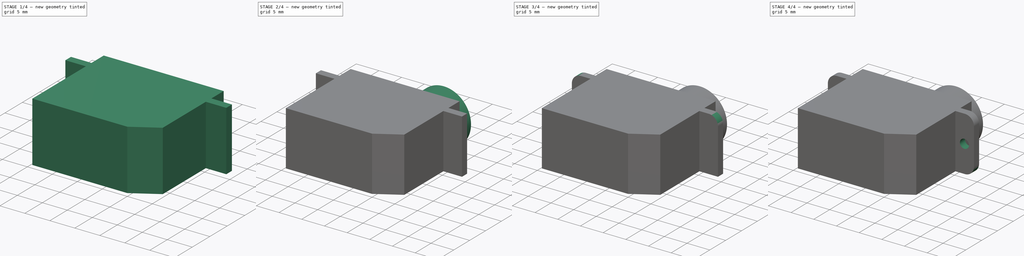
[diagram: build sequence overview — one tinted view per stage of 4, left to right]
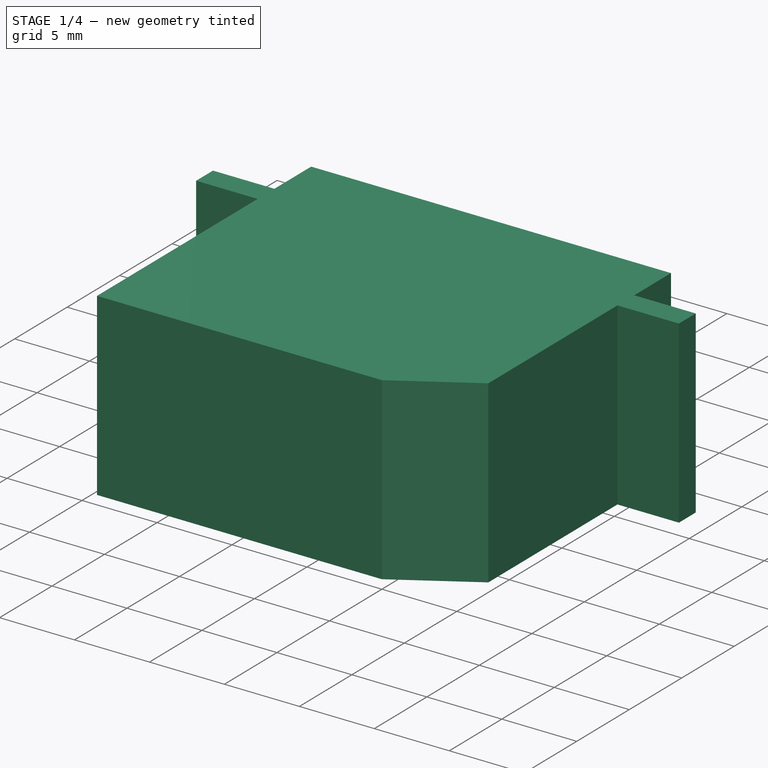
[diagram: stage 1 of 4 — iso view after this stage's code; geometry added in this stage tinted green]
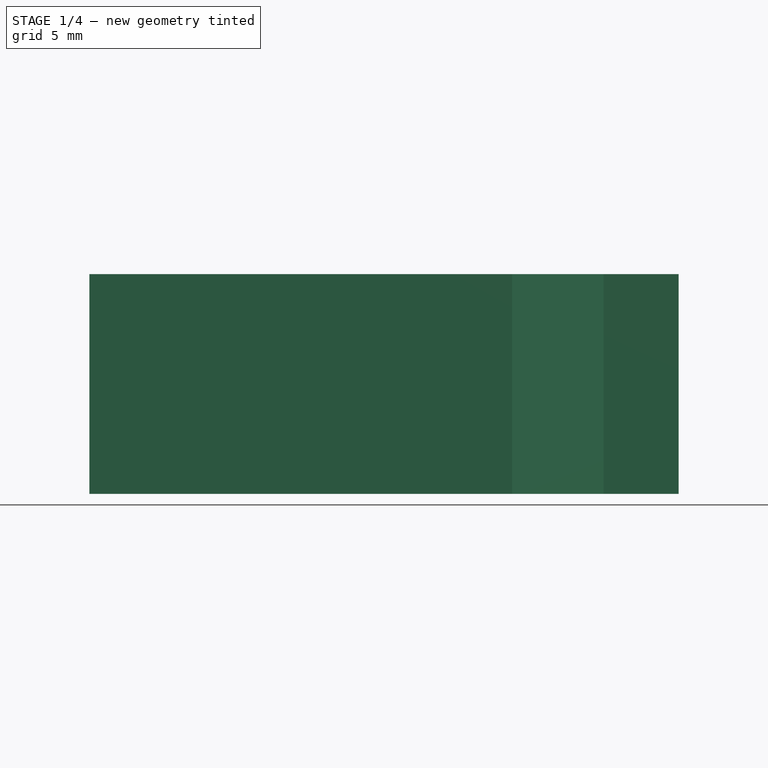
[diagram: stage 1 of 4 — front view after this stage's code; geometry added in this stage tinted green]
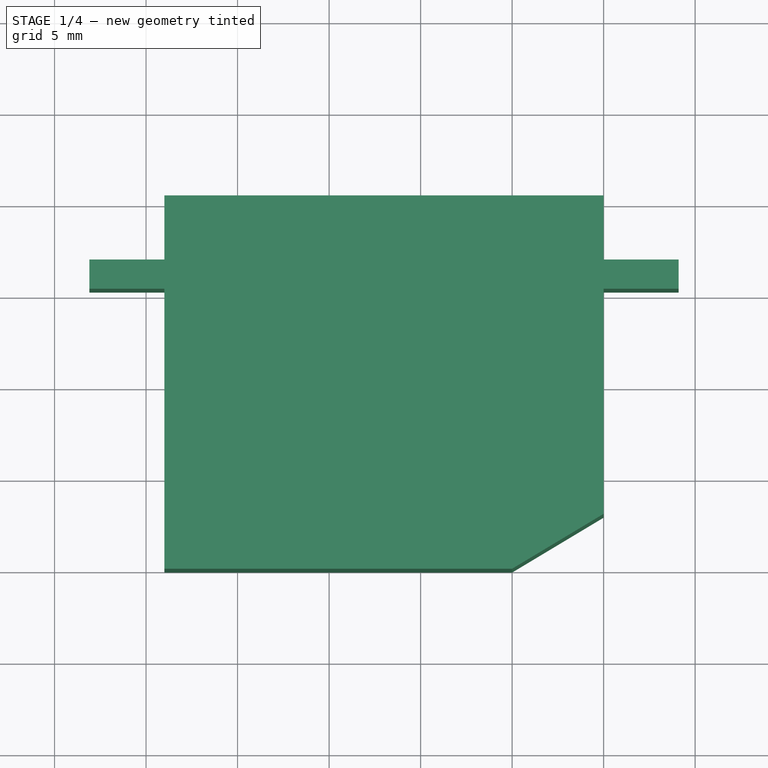
[diagram: stage 1 of 4 — top view after this stage's code; geometry added in this stage tinted green]
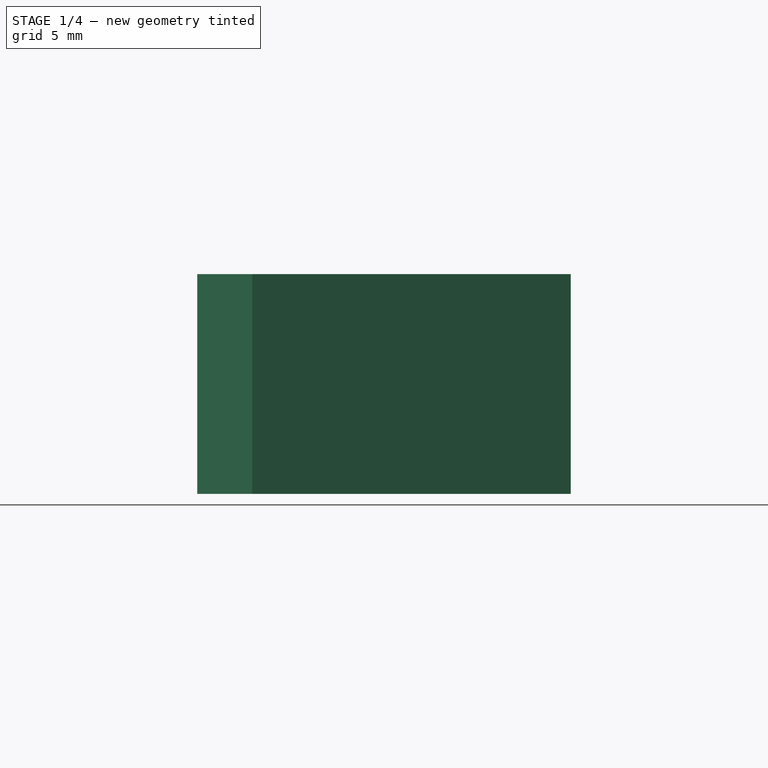
[diagram: stage 1 of 4 — right view after this stage's code; geometry added in this stage tinted green]
FCSTD DOCUMENT  (FreeCAD 0.16R4928 (Git))
Label: EmaxES08MAII
License: All rights reserved
LicenseURL: http://en.wikipedia.org/wiki/All_rights_reserved
objects: Sketcher::SketchObject×7, PartDesign::Pad×5, PartDesign::Fillet×4, PartDesign::LinearPattern×1, PartDesign::Pocket×1
note: 24 computed .brp shape members not serialized (recipe doc carries the construction recipe); baked Part::Feature solids carry a one-line shape summary decoded from their .brp

FEATURE [Sketcher::SketchObject] Sketch
  sketch-geometry (5):
    g0: LineSegment StartX=-19 StartY=20.4 StartZ=0 EndX=5 EndY=20.4 EndZ=0
    g1: LineSegment StartX=5 StartY=20.4 StartZ=0 EndX=5 EndY=3 EndZ=0
    g2: LineSegment StartX=0 StartY=0 StartZ=0 EndX=-19 EndY=0 EndZ=0
    g3: LineSegment StartX=-19 StartY=0 StartZ=0 EndX=-19 EndY=20.4 EndZ=0
    g4: LineSegment StartX=0 StartY=0 StartZ=0 EndX=5 EndY=3 EndZ=0
  constraints (15):
    c: Coincident(g0,g1)
    c: Coincident(g2,g3)
    c: Coincident(g3,g0)
    c: Horizontal(g0)
    c: Horizontal(g2)
    c: Vertical(g1)
    c: Vertical(g3)
    c: Coincident(g2,g4)
    c: Coincident(g1,g4)
    c: DistanceY(g1) = -17.4
    c: DistanceX(g0) = 24
    c: DistanceY(g3) = 20.4
    c: DistanceX(g2) = -19
    c: PointOnObject(g-1,g2)
    c: Coincident(g2,g-1)
FEATURE [PartDesign::Pad] Pad
  Length = 12
  Length2 = 100
  Sketch = -> Sketch
  Type = 0
FEATURE [Sketcher::SketchObject] Sketch001
  ExternalGeometry = -> [Pad]
  Placement = pos=(5,0,0) rot=(0.57735,0.57735,0.57735;2.0944rad)
  Support = -> Pad [Face4]
  sketch-geometry (4):
    g0: LineSegment StartX=15.3 StartY=12 StartZ=0 EndX=16.9 EndY=12 EndZ=0
    g1: LineSegment StartX=16.9 StartY=12 StartZ=0 EndX=16.9 EndY=0 EndZ=0
    g2: LineSegment StartX=16.9 StartY=0 StartZ=0 EndX=15.3 EndY=0 EndZ=0
    g3: LineSegment StartX=15.3 StartY=0 StartZ=0 EndX=15.3 EndY=12 EndZ=0
  constraints (12):
    c: Coincident(g0,g1)
    c: Coincident(g1,g2)
    c: Coincident(g2,g3)
    c: Coincident(g3,g0)
    c: Horizontal(g0)
    c: Horizontal(g2)
    c: Vertical(g1)
    c: Vertical(g3)
    c: PointOnObject(g0,g-3)
    c: PointOnObject(g1,g-4)
    c: DistanceX(g1,g2) = -1.6
    c: DistanceX(g0,g-3) = 3.5
FEATURE [PartDesign::Pad] Pad001
  Length = 4.1
  Length2 = 100
  Sketch = -> Sketch001
  Type = 0
FEATURE [PartDesign::LinearPattern] LinearPattern
  Direction = -> Pad001 [Edge4]
  Length = 28.1
  Occurrences = 2
  Originals = -> [Pad001]
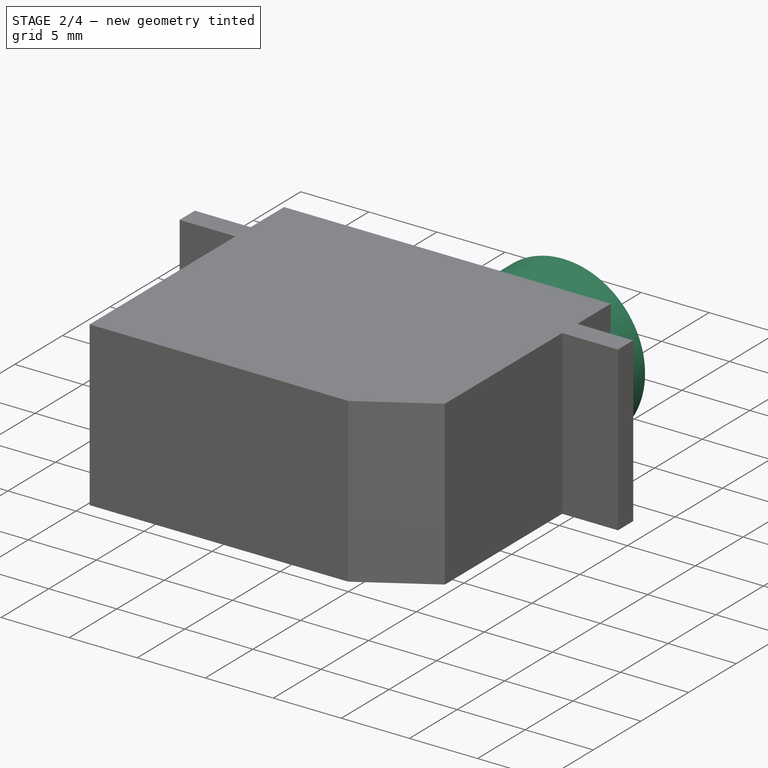
[diagram: stage 2 of 4 — iso view after this stage's code; geometry added in this stage tinted green]
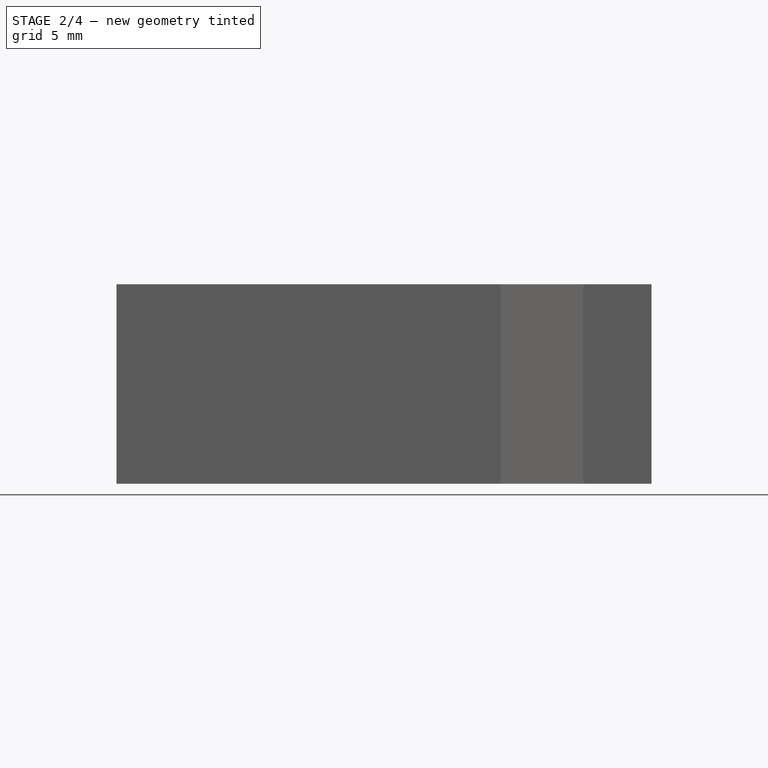
[diagram: stage 2 of 4 — front view after this stage's code; geometry added in this stage tinted green]
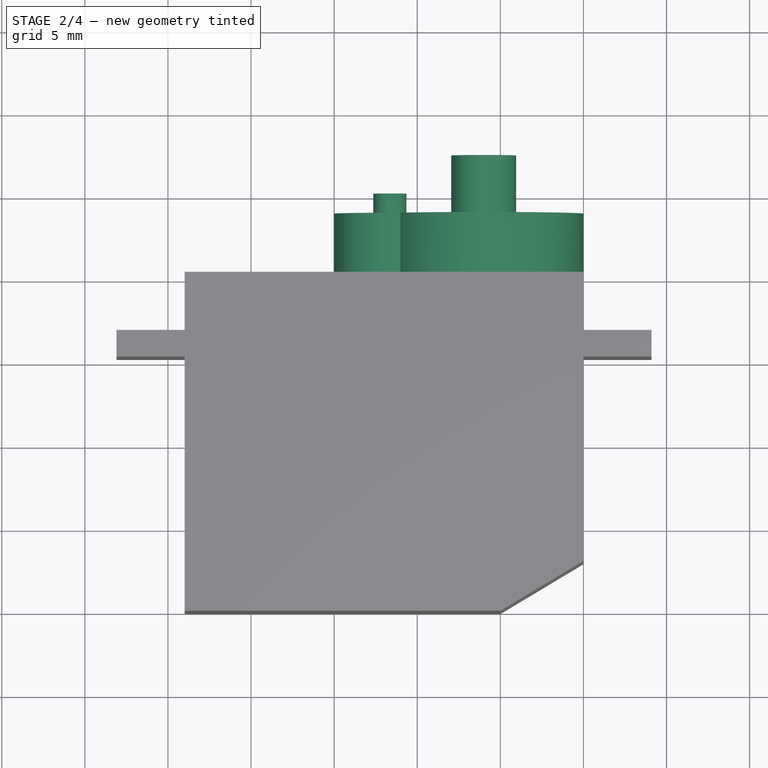
[diagram: stage 2 of 4 — top view after this stage's code; geometry added in this stage tinted green]
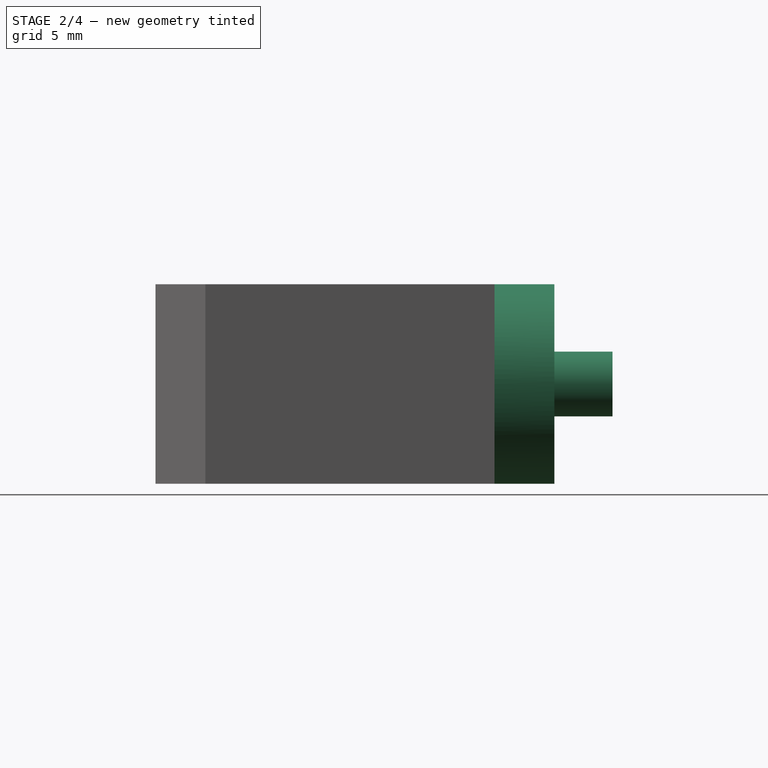
[diagram: stage 2 of 4 — right view after this stage's code; geometry added in this stage tinted green]
FEATURE [Sketcher::SketchObject] Sketch002
  Placement = pos=(0,20.4,0) rot=(0,0.707107,0.707107;3.14159rad)
  Support = -> LinearPattern [Face12]
FEATURE [Sketcher::SketchObject] Sketch003
  ExternalGeometry = -> [LinearPattern]
  Placement = pos=(0,20.4,0) rot=(0,0.707107,0.707107;3.14159rad)
  Support = -> LinearPattern [Face12]
  sketch-geometry (5):
    g0: ArcOfCircle CenterX=1 CenterY=6 CenterZ=0 NormalX=0 NormalY=0 NormalZ=1 Radius=6 StartAngle=0.580327 EndAngle=5.70286
    g1: LineSegment [constr] StartX=1 StartY=6 StartZ=0 EndX=-5 EndY=6 EndZ=0
    g2: LineSegment [constr] StartX=1 StartY=6 StartZ=0 EndX=19 EndY=6 EndZ=0
    g3: GeomPoint [constr] X=10 Y=6 Z=0
    g4: ArcOfCircle CenterX=6.65 CenterY=6 CenterZ=0 NormalX=0 NormalY=0 NormalZ=1 Radius=3.35 StartAngle=4.5225 EndAngle=8.04387
  constraints (16):
    c: Tangent(g-3,g0)
    c: Tangent(g0,g-4)
    c: Tangent(g0,g-5)
    c: Coincident(g1,g0)
    c: PointOnObject(g1,g-4)
    c: Horizontal(g1)
    c: PointOnObject(g2,g-6)
    c: Horizontal(g2)
    c: PointOnObject(g3,g2)
    c: DistanceX(g3,g1) = -15
    c: PointOnObject(g3,g4)
    c: PointOnObject(g4,g2)
    c: Radius(g4) = 3.35
    c: Coincident(g0,g4)
    c: Coincident(g0,g4)
    c: Coincident(g2,g0)
FEATURE [PartDesign::Pad] Pad002
  Length = 3.6
  Length2 = 100
  Sketch = -> Sketch003
  Type = 0
FEATURE [Sketcher::SketchObject] Sketch004
  ExternalGeometry = -> [Pad002]
  Placement = pos=(0,24,0) rot=(0,0.707107,0.707107;3.14159rad)
  Support = -> Pad002 [Face24]
  sketch-geometry (1):
    g0: Circle CenterX=1 CenterY=6 CenterZ=0 NormalX=0 NormalY=0 NormalZ=1 Radius=1.95
  constraints (2):
    c: Coincident(g0,g-3)
    c: Radius(g0) = 1.95
FEATURE [PartDesign::Pad] Pad003
  Length = 3.5
  Length2 = 100
  Sketch = -> Sketch004
  Type = 0
FEATURE [Sketcher::SketchObject] Sketch005
  ExternalGeometry = -> [Pad003]
  Placement = pos=(0,24,0) rot=(0,0.707107,0.707107;3.14159rad)
  Support = -> Pad003 [Face24]
  sketch-geometry (1):
    g0: Circle CenterX=6.65 CenterY=6 CenterZ=0 NormalX=0 NormalY=0 NormalZ=1 Radius=1
  constraints (2):
    c: Coincident(g0,g-3)
    c: Radius(g0) = 1
FEATURE [PartDesign::Pad] Pad004
  Length = 1.2
  Length2 = 100
  Sketch = -> Sketch005
  Type = 0
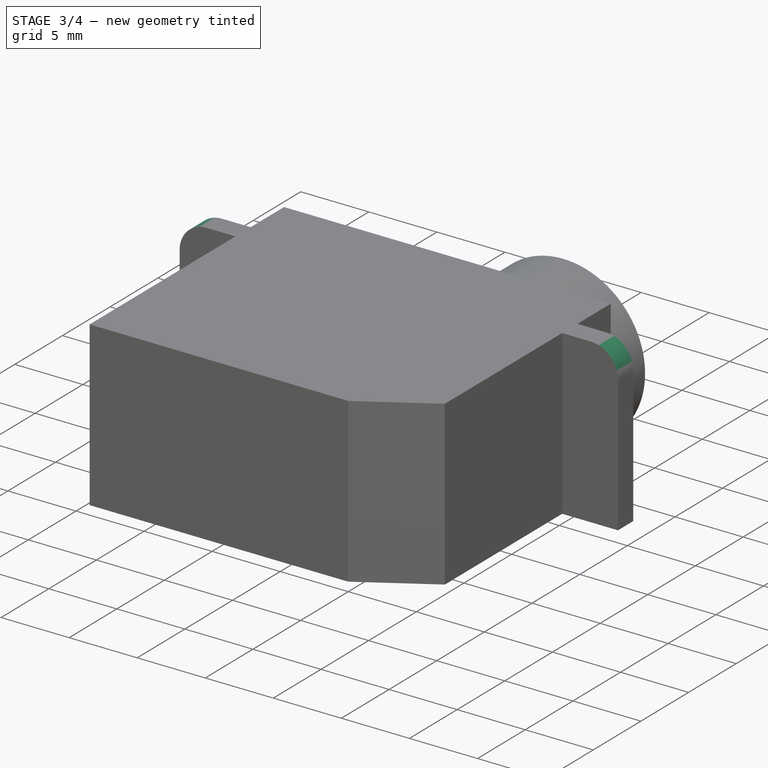
[diagram: stage 3 of 4 — iso view after this stage's code; geometry added in this stage tinted green]
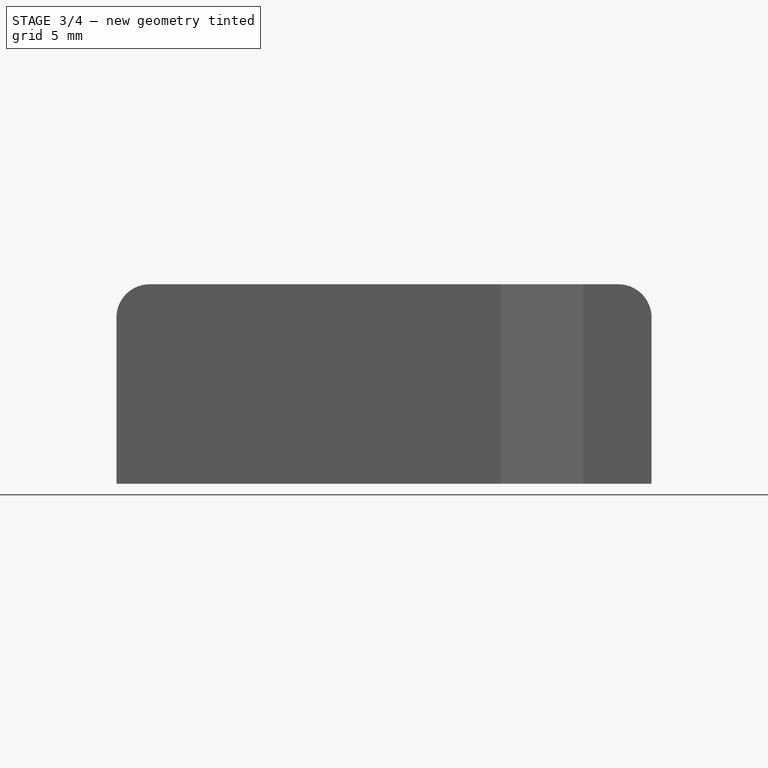
[diagram: stage 3 of 4 — front view after this stage's code; geometry added in this stage tinted green]
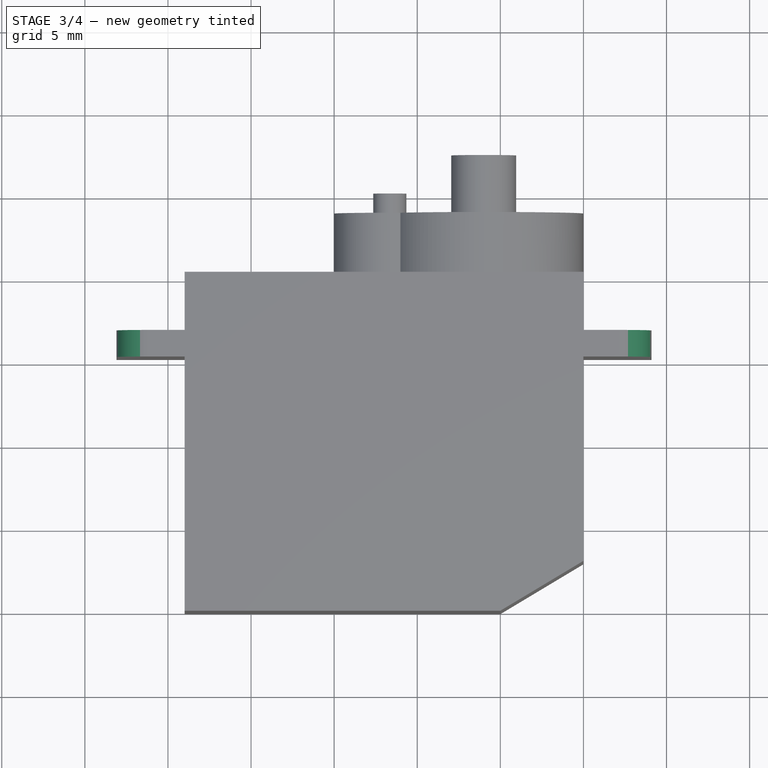
[diagram: stage 3 of 4 — top view after this stage's code; geometry added in this stage tinted green]
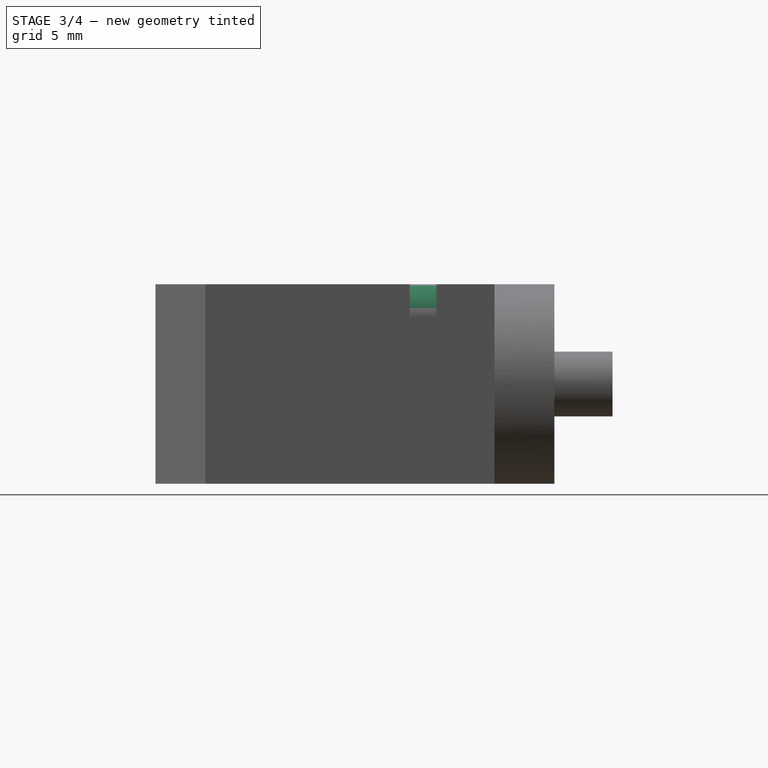
[diagram: stage 3 of 4 — right view after this stage's code; geometry added in this stage tinted green]
FEATURE [PartDesign::Fillet] Fillet
  Base = -> Pad004 [Edge46]
  Radius = 2
FEATURE [PartDesign::Fillet] Fillet001
  Base = -> Fillet [Edge34]
  Radius = 2
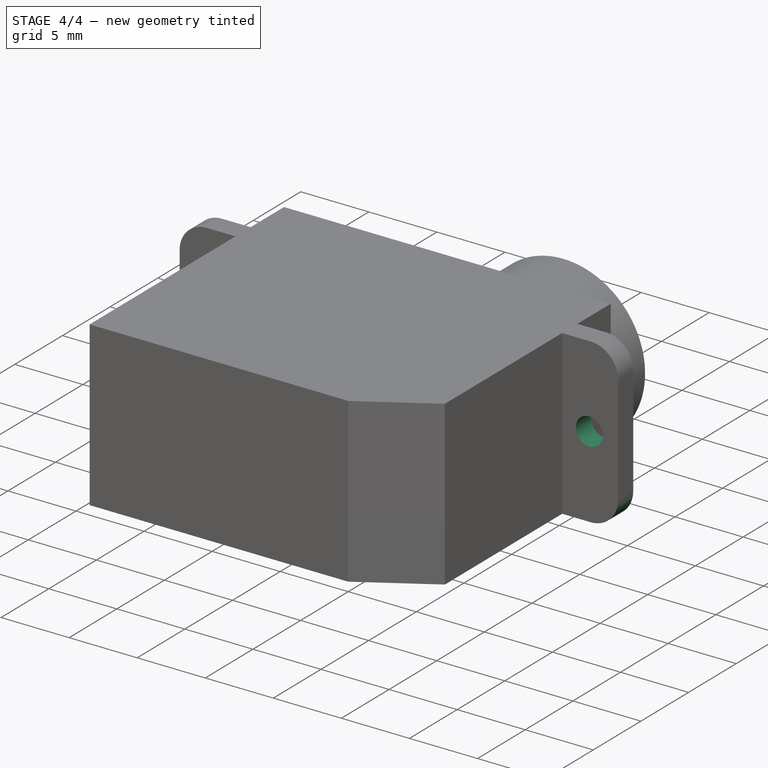
[diagram: stage 4 of 4 — iso view after this stage's code; geometry added in this stage tinted green]
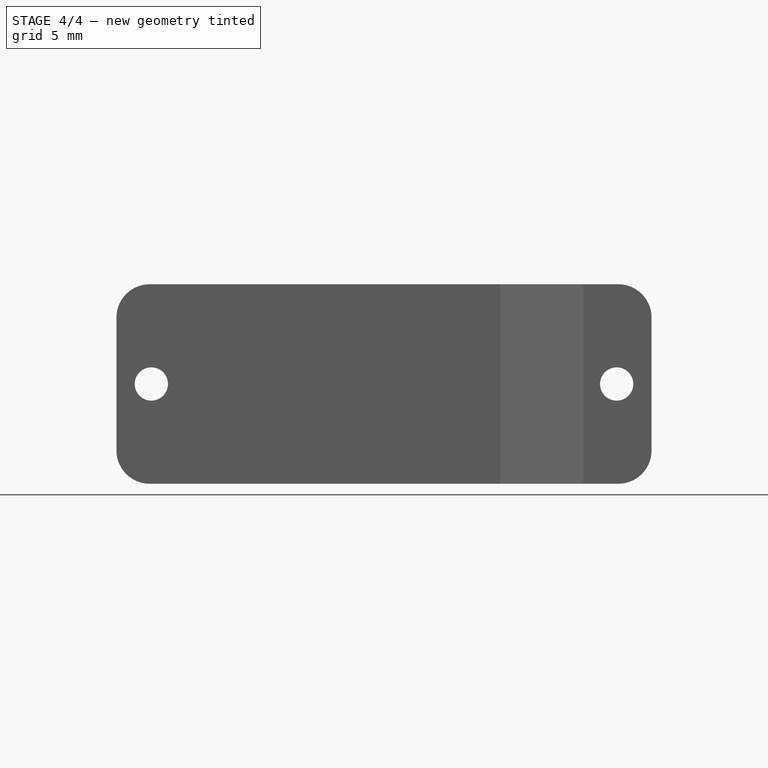
[diagram: stage 4 of 4 — front view after this stage's code; geometry added in this stage tinted green]
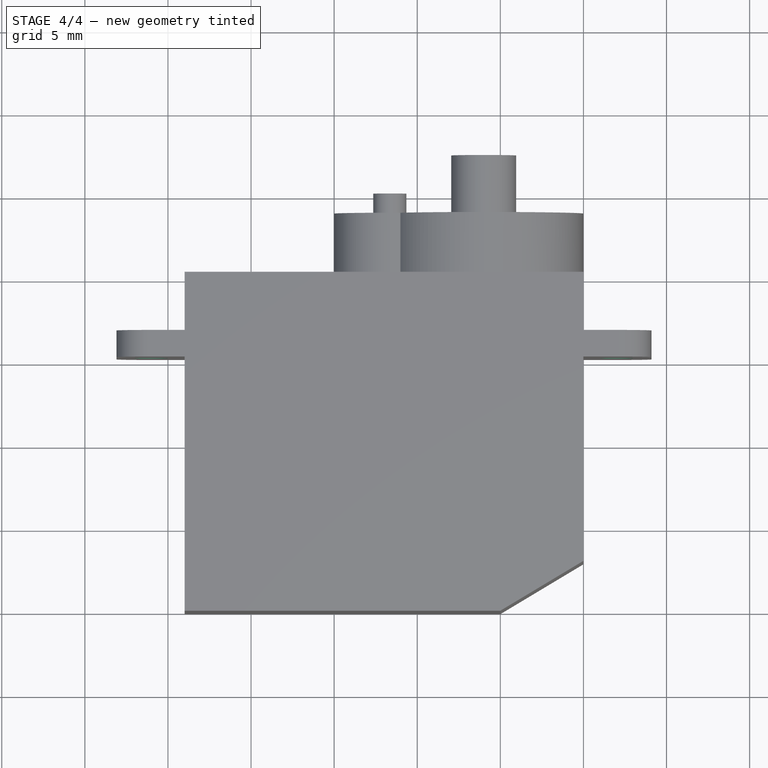
[diagram: stage 4 of 4 — top view after this stage's code; geometry added in this stage tinted green]
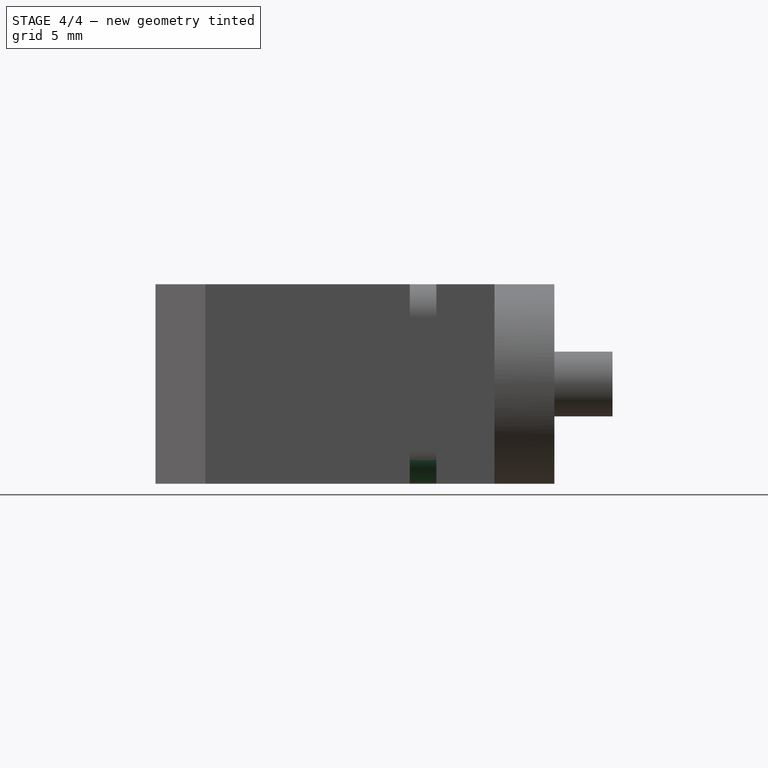
[diagram: stage 4 of 4 — right view after this stage's code; geometry added in this stage tinted green]
FEATURE [PartDesign::Fillet] Fillet002
  Base = -> Fillet001 [Edge61]
  Radius = 2
FEATURE [PartDesign::Fillet] Fillet003
  Base = -> Fillet002 [Edge44]
  Radius = 2
FEATURE [Sketcher::SketchObject] Sketch006
  ExternalGeometry = -> [Fillet003]
  Placement = pos=(0,16.9,0) rot=(0,0.707107,0.707107;3.14159rad)
  Support = -> Fillet003 [Face20]
  sketch-geometry (3):
    g0: LineSegment [constr] StartX=-9.1 StartY=6 StartZ=0 EndX=23.1 EndY=6 EndZ=0
    g1: Circle CenterX=-7 CenterY=6 CenterZ=0 NormalX=0 NormalY=0 NormalZ=1 Radius=1
    g2: Circle CenterX=21 CenterY=6 CenterZ=0 NormalX=0 NormalY=0 NormalZ=1 Radius=1
  constraints (10):
    c: PointOnObject(g0,g-4)
    c: PointOnObject(g0,g-5)
    c: Horizontal(g0)
    c: DistanceY(g0,g-3) = 6
    c: PointOnObject(g1,g0)
    c: Radius(g1) = 1
    c: DistanceX(g1,g-4) = -2.1
    c: PointOnObject(g2,g0)
    c: Equal(g2,g1)
    c: DistanceX(g2,g0) = 2.1
FEATURE [PartDesign::Pocket] Pocket
  Length = 5
  Sketch = -> Sketch006
  Type = 1
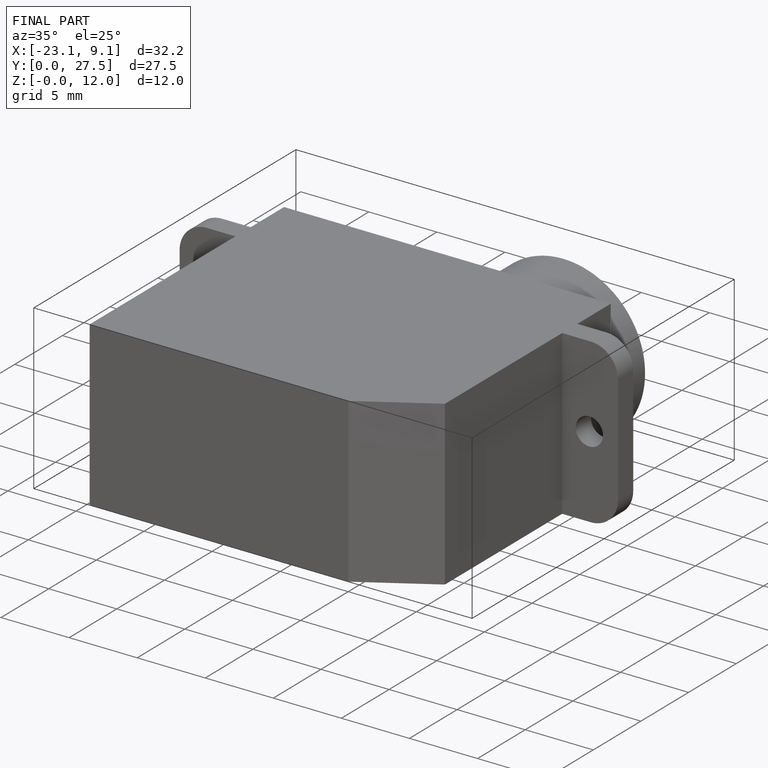
[diagram: finished part — iso view with bounding-box wireframe]
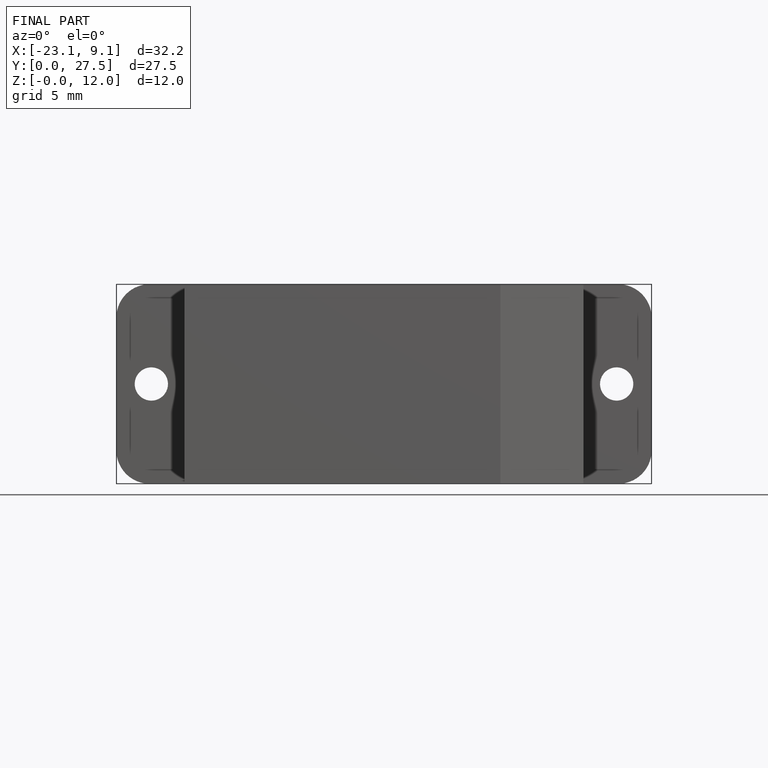
[diagram: finished part — front view with bounding-box wireframe]
